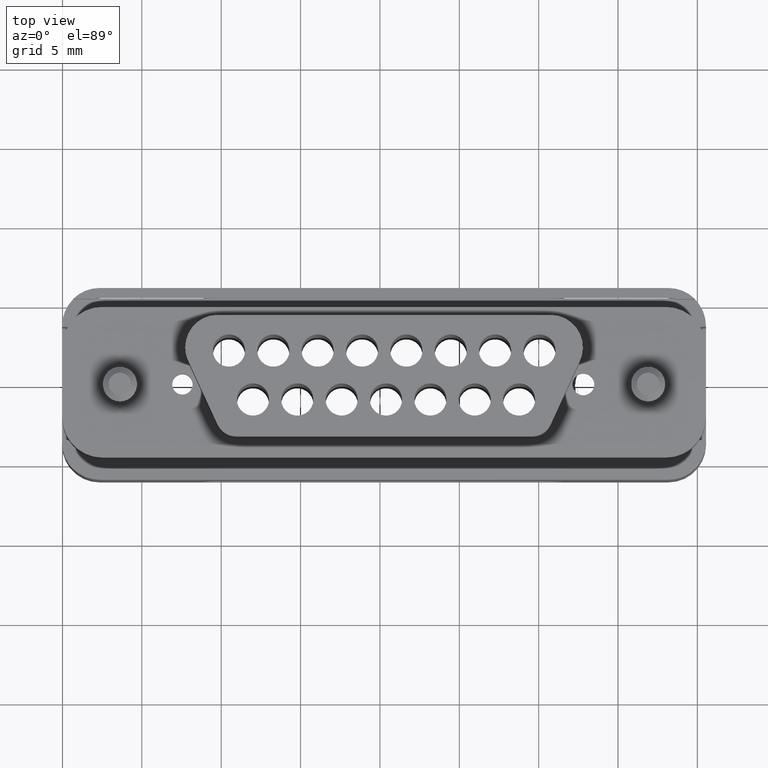
[diagram: clean part render]
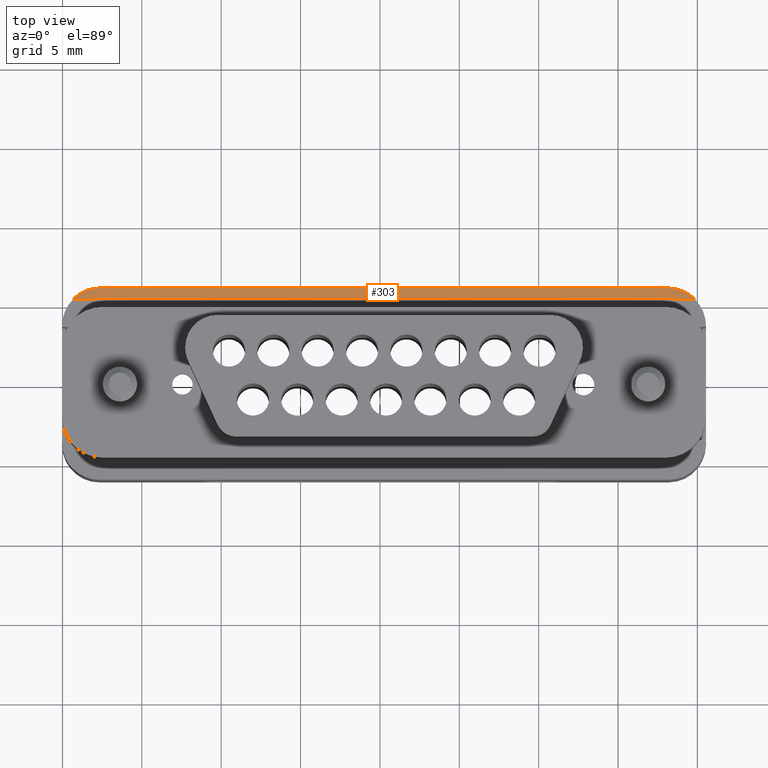
[diagram: same view with one face highlighted and labeled with its STEP entity id]
A machine part, top view. The second image highlights one B-rep face of the part: STEP entity #303.
In plain terms, the highlighted planar face has unit normal (0, 0, 1).
Its self-contained STEP definition (entity closure, byte-faithful):
#207 = ORIENTED_EDGE ( 'NONE', *, *, #2557, .T. ) ;
#208 = ORIENTED_EDGE ( 'NONE', *, *, #3005, .T. ) ;
#210 = ORIENTED_EDGE ( 'NONE', *, *, #2544, .T. ) ;
#211 = ORIENTED_EDGE ( 'NONE', *, *, #2548, .F. ) ;
#213 = ORIENTED_EDGE ( 'NONE', *, *, #2551, .F. ) ;
#214 = ORIENTED_EDGE ( 'NONE', *, *, #2556, .F. ) ;
#216 = ORIENTED_EDGE ( 'NONE', *, *, #2555, .F. ) ;
#217 = ORIENTED_EDGE ( 'NONE', *, *, #2554, .F. ) ;
#303 = ADVANCED_FACE ( 'NONE', ( #4338 ), #4073, .T. ) ;
#1381 = VECTOR ( 'NONE', #4749, 39.37007874015748100 ) ;
#1384 = LINE ( 'NONE', #4751, #1381 ) ;
#1559 = VECTOR ( 'NONE', #5110, 39.37007874015748100 ) ;
#1560 = CIRCLE ( 'NONE', #3202, 0.09300000000000020800 ) ;
#1562 = VECTOR ( 'NONE', #5122, 39.37007874015748100 ) ;
#1563 = LINE ( 'NONE', #5106, #1559 ) ;
#1564 = LINE ( 'NONE', #5123, #1562 ) ;
#1569 = CIRCLE ( 'NONE', #3199, 0.06800000000000019900 ) ;
#1571 = CIRCLE ( 'NONE', #3201, 0.06800000000000019900 ) ;
#1572 = VECTOR ( 'NONE', #5140, 39.37007874015748100 ) ;
#1574 = LINE ( 'NONE', #5141, #1572 ) ;
#1584 = CIRCLE ( 'NONE', #3191, 0.09300000000000020800 ) ;
#2392 = VERTEX_POINT ( 'NONE', #5317 ) ;
#2399 = VERTEX_POINT ( 'NONE', #5310 ) ;
#2415 = VERTEX_POINT ( 'NONE', #5301 ) ;
#2442 = VERTEX_POINT ( 'NONE', #5270 ) ;
#2453 = VERTEX_POINT ( 'NONE', #5256 ) ;
#2464 = VERTEX_POINT ( 'NONE', #5247 ) ;
#2478 = VERTEX_POINT ( 'NONE', #5230 ) ;
#2525 = VERTEX_POINT ( 'NONE', #5181 ) ;
#2544 = EDGE_CURVE ( 'NONE', #2453, #2415, #1584, .T. ) ;
#2548 = EDGE_CURVE ( 'NONE', #2453, #2478, #1574, .T. ) ;
#2551 = EDGE_CURVE ( 'NONE', #2478, #2392, #1569, .T. ) ;
#2554 = EDGE_CURVE ( 'NONE', #2399, #2442, #1564, .T. ) ;
#2555 = EDGE_CURVE ( 'NONE', #2464, #2399, #1571, .T. ) ;
#2556 = EDGE_CURVE ( 'NONE', #2392, #2464, #1563, .T. ) ;
#2557 = EDGE_CURVE ( 'NONE', #2525, #2442, #1560, .T. ) ;
#2605 = AXIS2_PLACEMENT_3D ( 'NONE', #4079, #4052, #4074 ) ;
#2752 = EDGE_LOOP ( 'NONE', ( #217, #216, #214, #213, #211, #210, #208, #207 ) ) ;
#3005 = EDGE_CURVE ( 'NONE', #2415, #2525, #1384, .T. ) ;
#3191 = AXIS2_PLACEMENT_3D ( 'NONE', #5145, #5144, #5142 ) ;
#3199 = AXIS2_PLACEMENT_3D ( 'NONE', #5120, #5119, #5117 ) ;
#3201 = AXIS2_PLACEMENT_3D ( 'NONE', #5105, #5104, #5103 ) ;
#3202 = AXIS2_PLACEMENT_3D ( 'NONE', #5099, #5098, #5097 ) ;
#4052 = DIRECTION ( 'NONE',  ( 0.0000000000000000000, 0.0000000000000000000, 1.000000000000000000 ) ) ;
#4073 = PLANE ( 'NONE',  #2605 ) ;
#4074 = DIRECTION ( 'NONE',  ( 1.000000000000000000, 0.0000000000000000000, -0.0000000000000000000 ) ) ;
#4079 = CARTESIAN_POINT ( 'NONE',  ( -0.4985619370263266200, 0.3438096671230258000, 0.2022459008453935100 ) ) ;
#4338 = FACE_OUTER_BOUND ( 'NONE', #2752, .T. ) ;
#4749 = DIRECTION ( 'NONE',  ( -1.000000000000000000, 0.0000000000000000000, 0.0000000000000000000 ) ) ;
#4751 = CARTESIAN_POINT ( 'NONE',  ( 0.9124380629736734700, 0.4368096671230262700, 0.2022459008453935100 ) ) ;
#5097 = DIRECTION ( 'NONE',  ( 1.000000000000000000, 0.0000000000000000000, 0.0000000000000000000 ) ) ;
#5098 = DIRECTION ( 'NONE',  ( 0.0000000000000000000, 0.0000000000000000000, 1.000000000000000000 ) ) ;
#5099 = CARTESIAN_POINT ( 'NONE',  ( -0.4985619370263266200, 0.3438096671230258000, 0.2022459008453935100 ) ) ;
#5103 = DIRECTION ( 'NONE',  ( 1.000000000000000000, 0.0000000000000000000, 0.0000000000000000000 ) ) ;
#5104 = DIRECTION ( 'NONE',  ( 0.0000000000000000000, 0.0000000000000000000, 1.000000000000000000 ) ) ;
#5105 = CARTESIAN_POINT ( 'NONE',  ( -0.4985619370263266200, 0.3438096671230258000, 0.2022459008453935100 ) ) ;
#5106 = CARTESIAN_POINT ( 'NONE',  ( 0.9124380629736734700, 0.4118096671230261400, 0.2022459008453935100 ) ) ;
#5110 = DIRECTION ( 'NONE',  ( -1.000000000000000000, -9.680538602637360600E-017, 0.0000000000000000000 ) ) ;
#5117 = DIRECTION ( 'NONE',  ( 1.000000000000000000, 0.0000000000000000000, 0.0000000000000000000 ) ) ;
#5119 = DIRECTION ( 'NONE',  ( 0.0000000000000000000, 0.0000000000000000000, 1.000000000000000000 ) ) ;
#5120 = CARTESIAN_POINT ( 'NONE',  ( 0.9124380629736734700, 0.3438096671230258000, 0.2022459008453935100 ) ) ;
#5122 = DIRECTION ( 'NONE',  ( -1.000000000000000000, 0.0000000000000000000, 0.0000000000000000000 ) ) ;
#5123 = CARTESIAN_POINT ( 'NONE',  ( -0.5154009370263265000, 0.4096917441925903600, 0.2022459008453935100 ) ) ;
#5140 = DIRECTION ( 'NONE',  ( -1.000000000000000000, -0.0000000000000000000, -0.0000000000000000000 ) ) ;
#5141 = CARTESIAN_POINT ( 'NONE',  ( 0.9310289448797495200, 0.4092189868714712400, 0.2022459008453935100 ) ) ;
#5142 = DIRECTION ( 'NONE',  ( -1.000000000000000000, 0.0000000000000000000, 0.0000000000000000000 ) ) ;
#5144 = DIRECTION ( 'NONE',  ( 0.0000000000000000000, 0.0000000000000000000, 1.000000000000000000 ) ) ;
#5145 = CARTESIAN_POINT ( 'NONE',  ( 0.9124380629736734700, 0.3438096671230258000, 0.2022459008453935100 ) ) ;
#5181 = CARTESIAN_POINT ( 'NONE',  ( -0.4985619370263266200, 0.4368096671230262700, 0.2022459008453935100 ) ) ;
#5230 = CARTESIAN_POINT ( 'NONE',  ( 0.9310289448797495200, 0.4092189868714712400, 0.2022459008453935100 ) ) ;
#5247 = CARTESIAN_POINT ( 'NONE',  ( -0.4985619370263266200, 0.4118096671230260200, 0.2022459008453935100 ) ) ;
#5256 = CARTESIAN_POINT ( 'NONE',  ( 0.9785487345029028100, 0.4092189868714712400, 0.2022459008453935100 ) ) ;
#5270 = CARTESIAN_POINT ( 'NONE',  ( -0.5642014976662334000, 0.4096917441925903600, 0.2022459008453935100 ) ) ;
#5301 = CARTESIAN_POINT ( 'NONE',  ( 0.9124380629736734700, 0.4368096671230262700, 0.2022459008453935100 ) ) ;
#5310 = CARTESIAN_POINT ( 'NONE',  ( -0.5154009370263265000, 0.4096917441925902500, 0.2022459008453935100 ) ) ;
#5317 = CARTESIAN_POINT ( 'NONE',  ( 0.9124380629736734700, 0.4118096671230261400, 0.2022459008453935100 ) ) ;